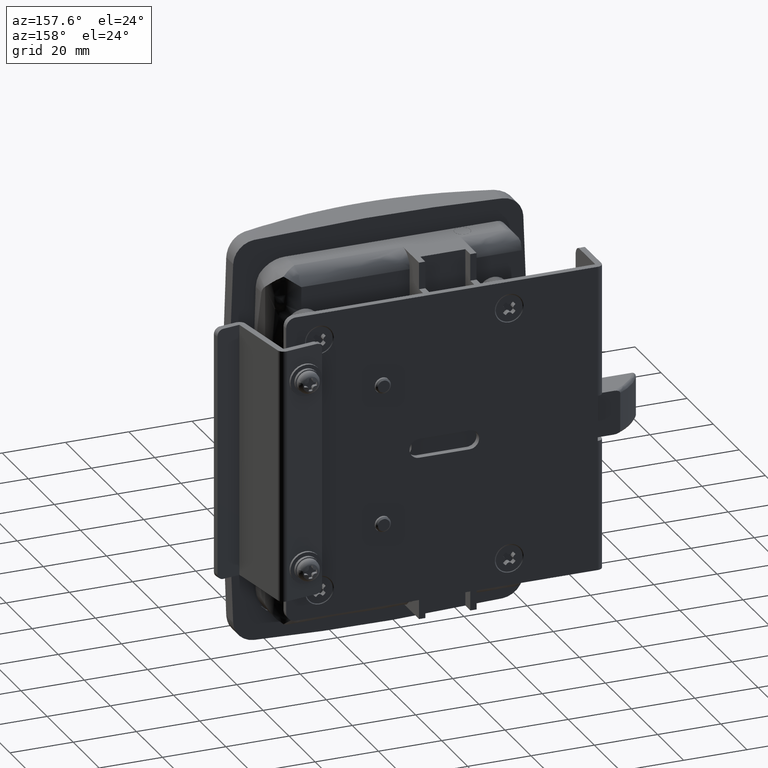
[diagram: clean part render]
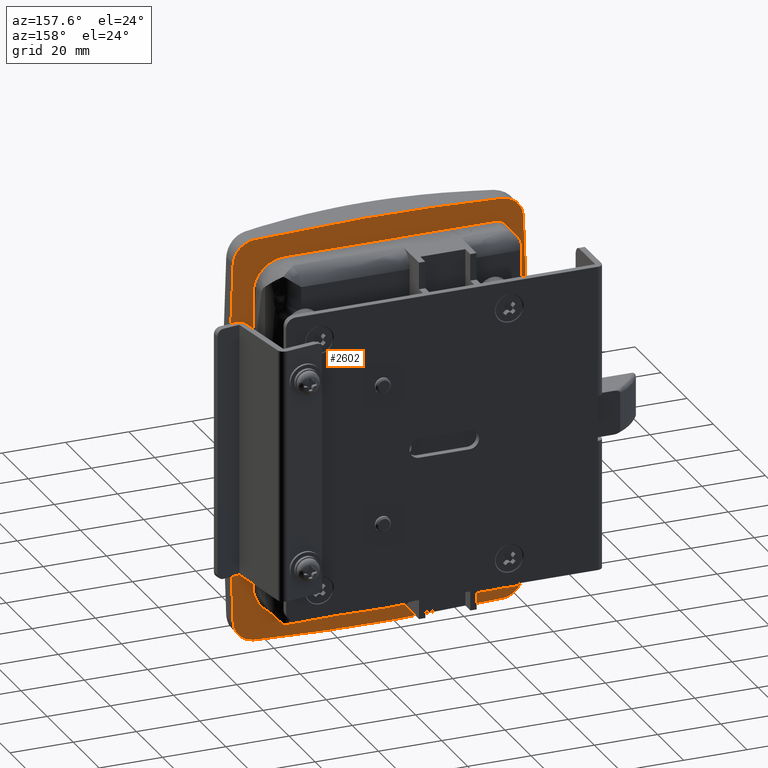
[diagram: same view with one face highlighted and labeled with its STEP entity id]
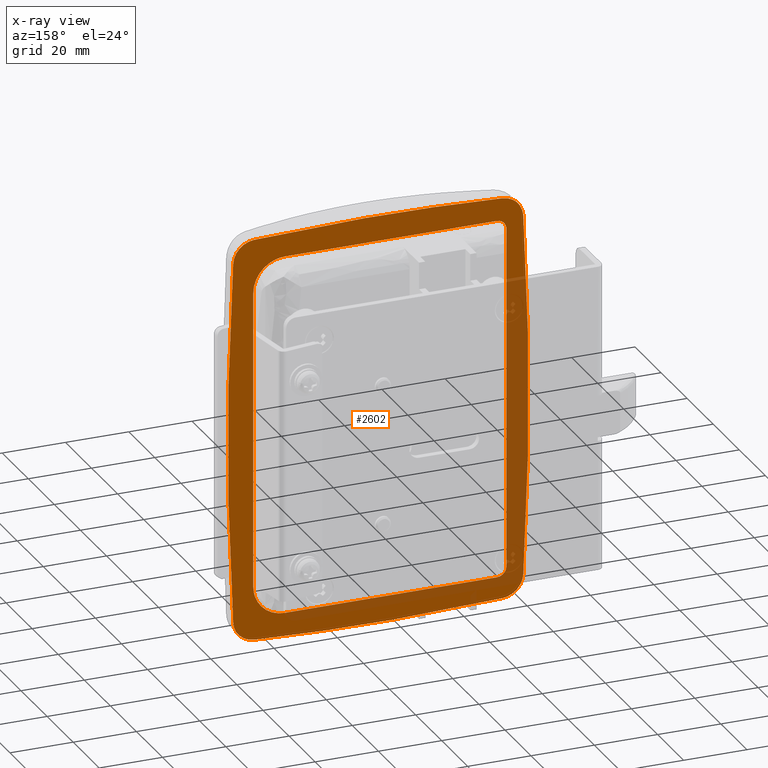
[diagram: x-ray of the same camera — body ghosted, the highlighted face saturated]
A machine part, auxiliary view. The second image highlights one B-rep face of the part: STEP entity #2602.
The next image is the same camera in x-ray: the body ghosted, the highlighted face saturated — about 29% of this face is hidden behind the body in this view.
In plain terms, the highlighted face is a freeform B-spline surface patch.
Its self-contained STEP definition (entity closure, byte-faithful):
#2040=CARTESIAN_POINT('',(10.000000000196160,1.0,56.999955629393398));
#2041=VERTEX_POINT('',#2040);
#2047=CARTESIAN_POINT('',(77.000000000217895,1.0,56.999955629183397));
#2048=VERTEX_POINT('',#2047);
#2049=CARTESIAN_POINT('',(10.000000000196160,1.0,56.999955629393398));
#2050=CARTESIAN_POINT('',(77.000000000217895,1.0,56.999955629183397));
#2051=QUASI_UNIFORM_CURVE('',1,(#2049,#2050),.UNSPECIFIED.,.F.,.U.);
#2052=EDGE_CURVE('',#2041,#2048,#2051,.T.);
#2092=CARTESIAN_POINT('',(87.000000000186589,1.0,46.999955629183397));
#2093=VERTEX_POINT('',#2092);
#2094=CARTESIAN_POINT('',(87.000000000186589,1.0,46.999955629183397));
#2095=CARTESIAN_POINT('',(87.000591411354208,1.000000000000000,48.063594926858613));
#2096=CARTESIAN_POINT('',(86.736394570561288,0.999999999999999,49.699421551897402));
#2097=CARTESIAN_POINT('',(85.717249628267012,1.0,52.076978551617223));
#2098=CARTESIAN_POINT('',(84.545900341403168,1.000000000000000,53.677025601926552));
#2099=CARTESIAN_POINT('',(83.079334252007186,1.0,54.989430537228202));
#2100=CARTESIAN_POINT('',(81.668410418880228,1.000000000000002,55.907463619802442));
#2101=CARTESIAN_POINT('',(79.617776636531161,0.999999999999998,56.756999194010717));
#2102=CARTESIAN_POINT('',(77.981790198292899,1.000000000000002,57.000363078563602));
#2103=CARTESIAN_POINT('',(77.000000000217895,1.0,56.999955629183397));
#2104=B_SPLINE_CURVE_WITH_KNOTS('',3,(#2094,#2095,#2096,#2097,#2098,#2099,#2100,#2101,#2102,#2103),.UNSPECIFIED.,.F.,.U.,(4,1,1,1,1,1,1,4),(0.000000309021519,3.190680223447917,4.908792633185710,7.731405600199328,9.081215389097320,10.799269984469170,12.762822909977309,15.708061828752340),.UNSPECIFIED.);
#2105=EDGE_CURVE('',#2093,#2048,#2104,.T.);
#2128=CARTESIAN_POINT('',(87.000000000186589,1.0,-47.000044370024803));
#2129=VERTEX_POINT('',#2128);
#2130=CARTESIAN_POINT('',(87.000000000186589,1.0,46.999955629183397));
#2131=CARTESIAN_POINT('',(87.000000000186589,1.0,-47.000044370024803));
#2132=QUASI_UNIFORM_CURVE('',1,(#2130,#2131),.UNSPECIFIED.,.F.,.U.);
#2133=EDGE_CURVE('',#2093,#2129,#2132,.T.);
#2173=CARTESIAN_POINT('',(77.000000000186603,1.0,-57.000044370024803));
#2174=VERTEX_POINT('',#2173);
#2175=CARTESIAN_POINT('',(77.000000000186603,1.0,-57.000044370024803));
#2176=CARTESIAN_POINT('',(78.186381419465405,1.0,-57.000922447299637));
#2177=CARTESIAN_POINT('',(80.231105256415105,1.000000000000001,-56.631712926430637));
#2178=CARTESIAN_POINT('',(82.530192433458780,0.999999999999998,-55.420575857567997));
#2179=CARTESIAN_POINT('',(84.076608673062594,1.000000000000005,-54.135296345691430));
#2180=CARTESIAN_POINT('',(85.088923215217804,0.999999999999991,-52.947071383690911));
#2181=CARTESIAN_POINT('',(85.970391284405721,1.000000000000013,-51.516542989083469));
#2182=CARTESIAN_POINT('',(86.757062932803123,0.999999999999992,-49.617841344019602));
#2183=CARTESIAN_POINT('',(87.000401696872942,1.000000000000001,-47.981827515047037));
#2184=CARTESIAN_POINT('',(87.000000000186589,1.0,-47.000044370024803));
#2185=B_SPLINE_CURVE_WITH_KNOTS('',3,(#2175,#2176,#2177,#2178,#2179,#2180,#2181,#2182,#2183,#2184),.UNSPECIFIED.,.F.,.U.,(4,1,1,1,1,1,1,4),(0.000000309002900,3.558851616075549,6.136019693470699,7.731405600204744,9.572042680669588,10.799269984483640,12.762822909996199,15.708061828777380),.UNSPECIFIED.);
#2186=EDGE_CURVE('',#2174,#2129,#2185,.T.);
#2209=CARTESIAN_POINT('',(10.000000000186620,1.0,-57.000044370024803));
#2210=VERTEX_POINT('',#2209);
#2211=CARTESIAN_POINT('',(77.000000000186603,1.0,-57.000044370024803));
#2212=CARTESIAN_POINT('',(10.000000000186620,1.0,-57.000044370024803));
#2213=QUASI_UNIFORM_CURVE('',1,(#2211,#2212),.UNSPECIFIED.,.F.,.U.);
#2214=EDGE_CURVE('',#2174,#2210,#2213,.T.);
#2252=CARTESIAN_POINT('',(7.000000000186620,1.0,-54.000044370024703));
#2253=VERTEX_POINT('',#2252);
#2254=CARTESIAN_POINT('',(7.000000000186620,1.0,-54.000044370024703));
#2255=CARTESIAN_POINT('',(6.999331097589330,1.000000000000002,-54.441938755917363));
#2256=CARTESIAN_POINT('',(7.171244857779936,0.999999999999998,-55.202236758429102));
#2257=CARTESIAN_POINT('',(7.818136473492321,1.000000000000006,-56.145163009528623));
#2258=CARTESIAN_POINT('',(8.748772966439221,0.999999999999989,-56.817881845022832));
#2259=CARTESIAN_POINT('',(9.558092979014711,1.000000000000006,-57.000679772200399));
#2260=CARTESIAN_POINT('',(10.000000000186620,1.0,-57.000044370024803));
#2261=B_SPLINE_CURVE_WITH_KNOTS('',3,(#2254,#2255,#2256,#2257,#2258,#2259,#2260),.UNSPECIFIED.,.F.,.U.,(4,1,1,1,4),(0.000000571876414,1.325400560351612,2.282704664945896,3.387107244642337,4.712507233116056),.UNSPECIFIED.);
#2262=EDGE_CURVE('',#2253,#2210,#2261,.T.);
#2285=CARTESIAN_POINT('',(7.000000000186620,1.0,53.999955629393597));
#2286=VERTEX_POINT('',#2285);
#2287=CARTESIAN_POINT('',(7.000000000186620,1.0,-54.000044370024703));
#2288=CARTESIAN_POINT('',(7.000000000186620,1.0,53.999955629393597));
#2289=QUASI_UNIFORM_CURVE('',1,(#2287,#2288),.UNSPECIFIED.,.F.,.U.);
#2290=EDGE_CURVE('',#2253,#2286,#2289,.T.);
#2326=CARTESIAN_POINT('',(10.000000000196160,1.0,56.999955629393398));
#2327=CARTESIAN_POINT('',(9.558076613853581,1.000000000000001,57.000653216475300));
#2328=CARTESIAN_POINT('',(8.846941815302598,1.000000000000000,56.839747054695259));
#2329=CARTESIAN_POINT('',(8.078866067886915,0.999999999999999,56.339838093662507));
#2330=CARTESIAN_POINT('',(7.534583517496593,0.999999999999998,55.768324932740683));
#2331=CARTESIAN_POINT('',(7.115066084068222,1.000000000000006,55.006154974349279));
#2332=CARTESIAN_POINT('',(6.999800118634096,0.999999999999991,54.343587916716473));
#2333=CARTESIAN_POINT('',(7.000000000186620,1.0,53.999955629393597));
#2334=B_SPLINE_CURVE_WITH_KNOTS('',3,(#2326,#2327,#2328,#2329,#2330,#2331,#2332,#2333),.UNSPECIFIED.,.F.,.U.,(4,1,1,1,1,4),(0.000000571879585,1.325400560354834,2.135357677567981,2.724356423074458,3.681653890976657,4.712507233122953),.UNSPECIFIED.);
#2335=EDGE_CURVE('',#2041,#2286,#2334,.T.);
#2472=CARTESIAN_POINT('',(-4.745249815871285,1.0,71.493499747575697));
#2473=CARTESIAN_POINT('',(99.745252363971005,1.0,71.493499747575697));
#2474=CARTESIAN_POINT('',(-4.745249815871285,1.0,-71.493503234596346));
#2475=CARTESIAN_POINT('',(99.745252363971005,1.0,-71.493503234596346));
#2476=B_SPLINE_SURFACE_WITH_KNOTS('',1,1,((#2472,#2474),(#2473,#2475)),.UNSPECIFIED.,.F.,.F.,.U.,(2,2),(2,2),(0.0,104.490502179842300),(0.0,142.987002982171990),.UNSPECIFIED.);
#2477=CARTESIAN_POINT('',(93.352146958775407,1.0,57.384585585241012));
#2478=VERTEX_POINT('',#2477);
#2479=CARTESIAN_POINT('',(86.729826981912510,1.0,63.973311056002707));
#2480=VERTEX_POINT('',#2479);
#2481=CARTESIAN_POINT('',(93.352146958775407,1.0,57.384585585241012));
#2482=CARTESIAN_POINT('',(93.312691559930940,1.000000000000003,58.075963335677869));
#2483=CARTESIAN_POINT('',(93.059097544434223,0.999999999999995,59.288396685602592));
#2484=CARTESIAN_POINT('',(92.212019412676156,1.000000000000005,60.962880756960693));
#2485=CARTESIAN_POINT('',(90.936707919283663,0.999999999999997,62.419114374082369));
#2486=CARTESIAN_POINT('',(89.056134624347933,1.000000000000005,63.583774988451793));
#2487=CARTESIAN_POINT('',(87.527835609524274,0.999999999999997,63.932028741222503));
#2488=CARTESIAN_POINT('',(86.729826981912510,1.0,63.973311056002707));
#2489=B_SPLINE_CURVE_WITH_KNOTS('',3,(#2481,#2482,#2483,#2484,#2485,#2486,#2487,#2488),.UNSPECIFIED.,.F.,.U.,(4,1,1,1,1,4),(0.000000138233366,2.077467457891093,3.675575866780322,5.593165233805522,7.830485474209258,10.227571224752049),.UNSPECIFIED.);
#2490=EDGE_CURVE('',#2478,#2480,#2489,.T.);
#2491=ORIENTED_EDGE('',*,*,#2490,.F.);
#2492=CARTESIAN_POINT('',(93.352146958777709,1.0,-57.384585585501512));
#2493=VERTEX_POINT('',#2492);
#2494=CARTESIAN_POINT('',(93.352146958777709,1.0,-57.384585585501512));
#2495=CARTESIAN_POINT('',(96.650572942868834,1.0,-1.300847E-010));
#2496=CARTESIAN_POINT('',(93.352146958775407,1.0,57.384585585241012));
#2504=(BOUNDED_CURVE()B_SPLINE_CURVE(2,(#2494,#2495,#2496),.UNSPECIFIED.,.F.,.U.)CURVE()GEOMETRIC_REPRESENTATION_ITEM()QUASI_UNIFORM_CURVE()RATIONAL_B_SPLINE_CURVE((1.0,0.998352146958775,1.0))REPRESENTATION_ITEM(''));
#2505=EDGE_CURVE('',#2493,#2478,#2504,.T.);
#2506=ORIENTED_EDGE('',*,*,#2505,.F.);
#2507=CARTESIAN_POINT('',(86.729826981894206,1.0,-63.973311056265111));
#2508=VERTEX_POINT('',#2507);
#2509=CARTESIAN_POINT('',(86.729826981894206,1.0,-63.973311056265111));
#2510=CARTESIAN_POINT('',(87.421402554738393,1.000000000000002,-63.937384633051792));
#2511=CARTESIAN_POINT('',(88.529546746293121,0.999999999999998,-63.711436648606899));
#2512=CARTESIAN_POINT('',(89.835909242733266,1.0,-63.095573238624297));
#2513=CARTESIAN_POINT('',(90.981541427608519,1.000000000000001,-62.311595964953518));
#2514=CARTESIAN_POINT('',(92.173558810820282,0.999999999999998,-61.070731760544540));
#2515=CARTESIAN_POINT('',(93.074491499505015,0.999999999999998,-59.289459496590979));
#2516=CARTESIAN_POINT('',(93.318605836046984,1.000000000000002,-57.969547246959841));
#2517=CARTESIAN_POINT('',(93.352146958777709,1.0,-57.384585585501512));
#2518=B_SPLINE_CURVE_WITH_KNOTS('',3,(#2509,#2510,#2511,#2512,#2513,#2514,#2515,#2516,#2517),.UNSPECIFIED.,.F.,.U.,(4,1,1,1,1,1,4),(0.000000138236626,2.077467457897375,3.355950897627417,4.314804193089220,6.232375133874790,8.469735029189780,10.227571224773101),.UNSPECIFIED.);
#2519=EDGE_CURVE('',#2508,#2493,#2518,.T.);
#2520=ORIENTED_EDGE('',*,*,#2519,.F.);
#2521=CARTESIAN_POINT('',(8.270173018109309,1.0,-63.973311056229797));
#2522=VERTEX_POINT('',#2521);
#2523=CARTESIAN_POINT('',(8.270173018109309,1.0,-63.973311056229797));
#2524=CARTESIAN_POINT('',(47.500000000000242,1.0,-66.028096323373248));
#2525=CARTESIAN_POINT('',(86.729826981894206,1.0,-63.973311056265111));
#2533=(BOUNDED_CURVE()B_SPLINE_CURVE(2,(#2523,#2524,#2525),.UNSPECIFIED.,.F.,.U.)CURVE()GEOMETRIC_REPRESENTATION_ITEM()QUASI_UNIFORM_CURVE()RATIONAL_B_SPLINE_CURVE((1.0,0.998631081408697,1.0))REPRESENTATION_ITEM(''));
#2534=EDGE_CURVE('',#2522,#2508,#2533,.T.);
#2535=ORIENTED_EDGE('',*,*,#2534,.F.);
#2536=CARTESIAN_POINT('',(1.647853041230520,1.0,-57.384585585463697));
#2537=VERTEX_POINT('',#2536);
#2538=CARTESIAN_POINT('',(1.647853041230520,1.0,-57.384585585463697));
#2539=CARTESIAN_POINT('',(1.698813947223780,0.999999999999999,-58.288925907084653));
#2540=CARTESIAN_POINT('',(2.010904479561357,1.000000000000001,-59.497305004719763));
#2541=CARTESIAN_POINT('',(2.982077159387936,1.000000000000001,-61.217808009790602));
#2542=CARTESIAN_POINT('',(4.076093145585772,0.999999999999998,-62.410394501075487));
#2543=CARTESIAN_POINT('',(5.945130549479942,1.000000000000002,-63.567892971135130));
#2544=CARTESIAN_POINT('',(7.365621849698218,0.999999999999999,-63.926877781610713));
#2545=CARTESIAN_POINT('',(8.270173018109309,1.0,-63.973311056229797));
#2546=B_SPLINE_CURVE_WITH_KNOTS('',3,(#2538,#2539,#2540,#2541,#2542,#2543,#2544,#2545),.UNSPECIFIED.,.F.,.U.,(4,1,1,1,1,4),(0.000000138231947,2.716701203671323,3.675575866784934,5.912764529200845,7.510871433459078,10.227571224770591),.UNSPECIFIED.);
#2547=EDGE_CURVE('',#2537,#2522,#2546,.T.);
#2548=ORIENTED_EDGE('',*,*,#2547,.F.);
#2549=CARTESIAN_POINT('',(1.647853041229955,1.0,57.384585585430813));
#2550=VERTEX_POINT('',#2549);
#2551=CARTESIAN_POINT('',(1.647853041229955,1.0,57.384585585430813));
#2552=CARTESIAN_POINT('',(-1.650572942873296,1.0,-1.651029E-011));
#2553=CARTESIAN_POINT('',(1.647853041230520,1.0,-57.384585585463697));
#2561=(BOUNDED_CURVE()B_SPLINE_CURVE(2,(#2551,#2552,#2553),.UNSPECIFIED.,.F.,.U.)CURVE()GEOMETRIC_REPRESENTATION_ITEM()QUASI_UNIFORM_CURVE()RATIONAL_B_SPLINE_CURVE((1.0,0.998352146958771,1.0))REPRESENTATION_ITEM(''));
#2562=EDGE_CURVE('',#2550,#2537,#2561,.T.);
#2563=ORIENTED_EDGE('',*,*,#2562,.F.);
#2564=CARTESIAN_POINT('',(8.270173018127320,1.0,63.973311056194213));
#2565=VERTEX_POINT('',#2564);
#2566=CARTESIAN_POINT('',(8.270173018127320,1.0,63.973311056194213));
#2567=CARTESIAN_POINT('',(7.365722051674466,1.0,63.926802884824269));
#2568=CARTESIAN_POINT('',(5.734342660161822,0.999999999999998,63.515110059114022));
#2569=CARTESIAN_POINT('',(3.819977032506128,1.000000000000002,62.204671361448490));
#2570=CARTESIAN_POINT('',(2.679542930041241,0.999999999999997,60.775849207810033));
#2571=CARTESIAN_POINT('',(1.918903702740227,1.000000000000004,59.182928618258551));
#2572=CARTESIAN_POINT('',(1.687293740064990,0.999999999999998,58.075970634990497));
#2573=CARTESIAN_POINT('',(1.647853041229955,1.0,57.384585585430813));
#2574=B_SPLINE_CURVE_WITH_KNOTS('',3,(#2566,#2567,#2568,#2569,#2570,#2571,#2572,#2573),.UNSPECIFIED.,.F.,.U.,(4,1,1,1,1,4),(0.000000138232615,2.716701203676704,4.953993411098837,6.871621878506803,8.150107623506536,10.227571224786461),.UNSPECIFIED.);
#2575=EDGE_CURVE('',#2565,#2550,#2574,.T.);
#2576=ORIENTED_EDGE('',*,*,#2575,.F.);
#2577=CARTESIAN_POINT('',(86.729826981912510,1.0,63.973311056002707));
#2578=CARTESIAN_POINT('',(47.500000000024464,1.0,66.028096323224375));
#2579=CARTESIAN_POINT('',(8.270173018127320,1.0,63.973311056194213));
#2587=(BOUNDED_CURVE()B_SPLINE_CURVE(2,(#2577,#2578,#2579),.UNSPECIFIED.,.F.,.U.)CURVE()GEOMETRIC_REPRESENTATION_ITEM()QUASI_UNIFORM_CURVE()RATIONAL_B_SPLINE_CURVE((1.0,0.998631081408697,1.0))REPRESENTATION_ITEM(''));
#2588=EDGE_CURVE('',#2480,#2565,#2587,.T.);
#2589=ORIENTED_EDGE('',*,*,#2588,.F.);
#2590=EDGE_LOOP('',(#2491,#2506,#2520,#2535,#2548,#2563,#2576,#2589));
#2591=FACE_OUTER_BOUND('',#2590,.T.);
#2592=ORIENTED_EDGE('',*,*,#2052,.F.);
#2593=ORIENTED_EDGE('',*,*,#2335,.T.);
#2594=ORIENTED_EDGE('',*,*,#2290,.F.);
#2595=ORIENTED_EDGE('',*,*,#2262,.T.);
#2596=ORIENTED_EDGE('',*,*,#2214,.F.);
#2597=ORIENTED_EDGE('',*,*,#2186,.T.);
#2598=ORIENTED_EDGE('',*,*,#2133,.F.);
#2599=ORIENTED_EDGE('',*,*,#2105,.T.);
#2600=EDGE_LOOP('',(#2592,#2593,#2594,#2595,#2596,#2597,#2598,#2599));
#2601=FACE_BOUND('',#2600,.T.);
#2602=ADVANCED_FACE('',(#2591,#2601),#2476,.T.);